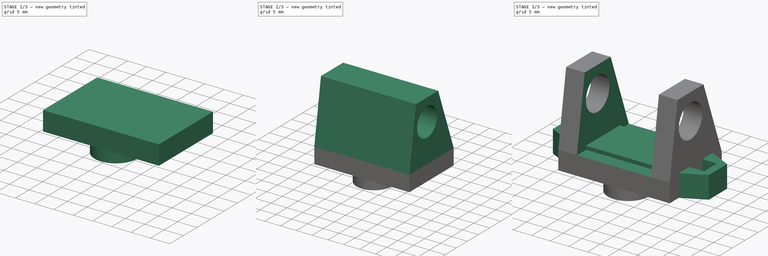
[diagram: build sequence overview — one tinted view per stage of 3, left to right]
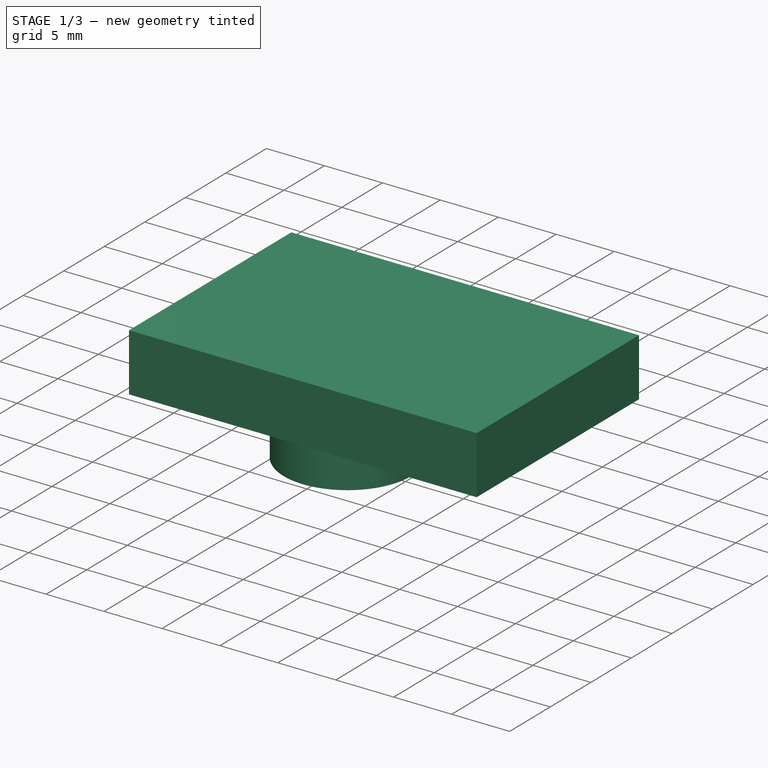
[diagram: stage 1 of 3 — iso view after this stage's code; geometry added in this stage tinted green]
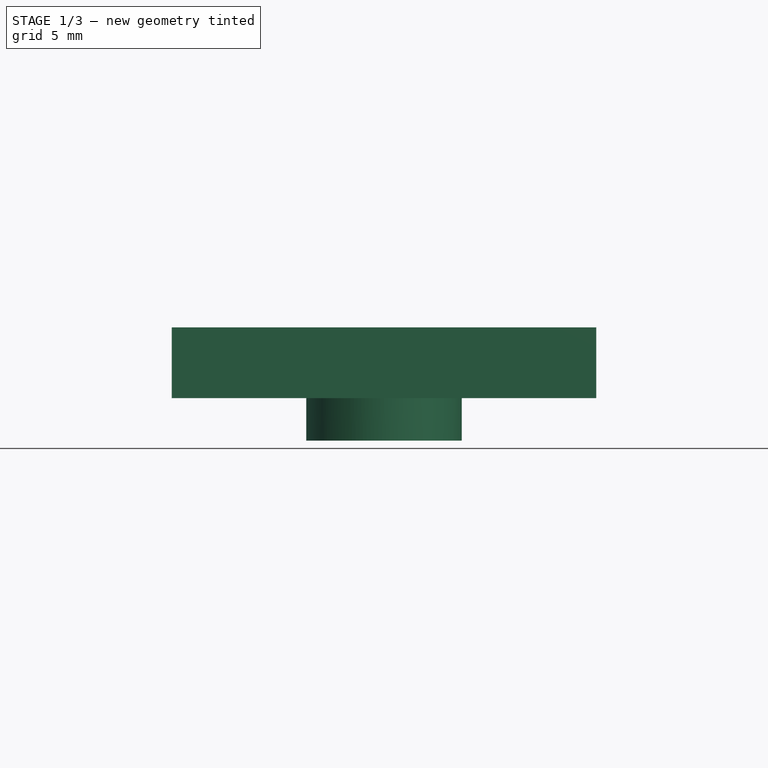
[diagram: stage 1 of 3 — front view after this stage's code; geometry added in this stage tinted green]
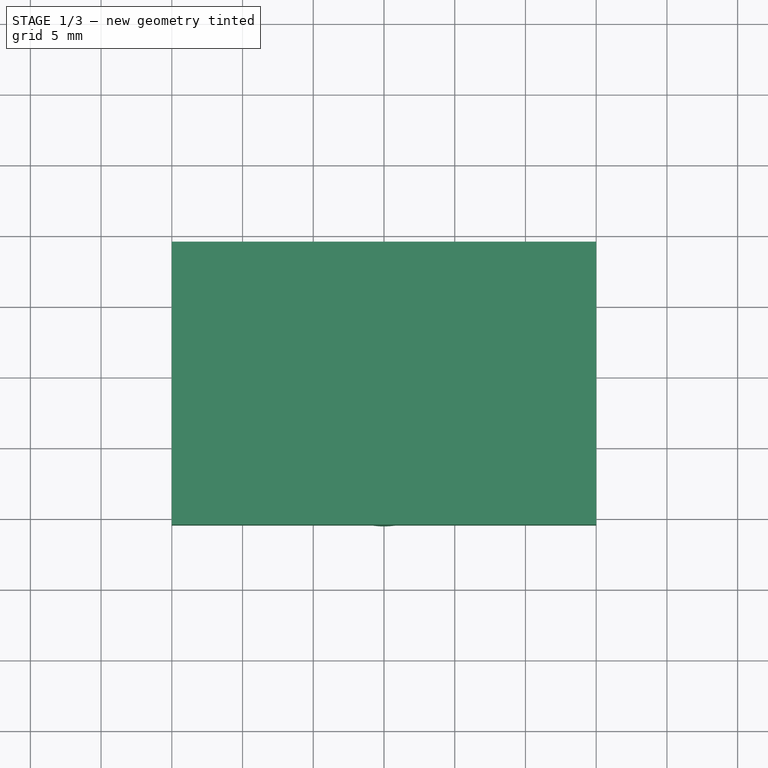
[diagram: stage 1 of 3 — top view after this stage's code; geometry added in this stage tinted green]
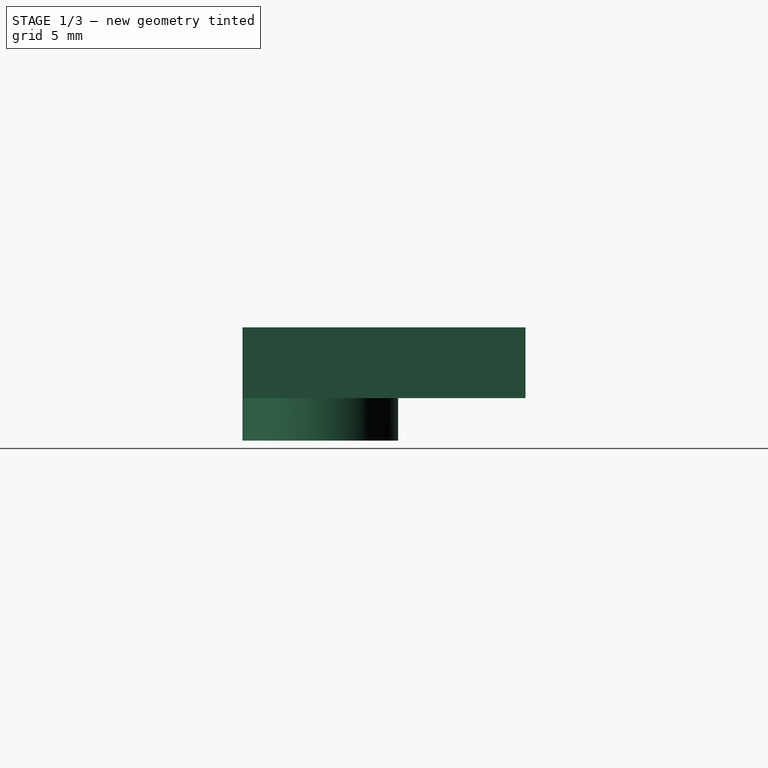
[diagram: stage 1 of 3 — right view after this stage's code; geometry added in this stage tinted green]
FCSTD DOCUMENT  (FreeCAD 0.19R)
Label: fpv_camera_support
License: All rights reserved
LicenseURL: http://en.wikipedia.org/wiki/All_rights_reserved
objects: Sketcher::SketchObject×5, PartDesign::Pad×4, PartDesign::CoordinateSystem×2, PartDesign::Pocket×1, PartDesign::Plane×1, PartDesign::Body×1
note: 19 computed .brp shape members not serialized (recipe doc carries the construction recipe); baked Part::Feature solids carry a one-line shape summary decoded from their .brp

FEATURE [Sketcher::SketchObject] Sketch
  FullyConstrained = true
  MapMode = 5
  Support = -> [XY_Plane]
  sketch-geometry (1):
    g0: Circle CenterX=0 CenterY=0 CenterZ=0 NormalX=0 NormalY=0 NormalZ=1 AngleXU=0 Radius=5.5
  constraints (2):
    c: Coincident(g0,g-1)
    c: Diameter(g0) = 11
FEATURE [PartDesign::Pad] Pad
  Direction = (1,1,1)
  Length = 3
  Length2 = 100
  Profile = -> Sketch
  Type = 0
FEATURE [Sketcher::SketchObject] Sketch001
  ExternalGeometry = -> [Pad]
  FullyConstrained = true
  MapMode = 5
  Placement = pos=(0,0,3) rot=(0,0,1;0rad)
  Support = -> [Pad]
  sketch-geometry (4):
    g0: LineSegment StartX=-15 StartY=14.5 StartZ=0 EndX=15 EndY=14.5 EndZ=0
    g1: LineSegment StartX=15 StartY=14.5 StartZ=0 EndX=15 EndY=-5.5 EndZ=0
    g2: LineSegment StartX=15 StartY=-5.5 StartZ=0 EndX=-15 EndY=-5.5 EndZ=0
    g3: LineSegment StartX=-15 StartY=-5.5 StartZ=0 EndX=-15 EndY=14.5 EndZ=0
  constraints (11):
    c: Coincident(g0,g1)
    c: Coincident(g1,g2)
    c: Coincident(g2,g3)
    c: Coincident(g3,g0)
    c: Horizontal(g0)
    c: Vertical(g1)
    c: Vertical(g3)
    c: DistanceX(g2,g2) = 30
    c: Symmetric(g1,g2,g-2)
    c: DistanceY(g1,g-1) = 5.5
    c: DistanceY(g1,g1) = 20
FEATURE [PartDesign::Pad] Pad001
  BaseFeature = -> Pad
  Direction = (1,1,1)
  Length = 5
  Length2 = 100
  Profile = -> Sketch001
  Type = 0
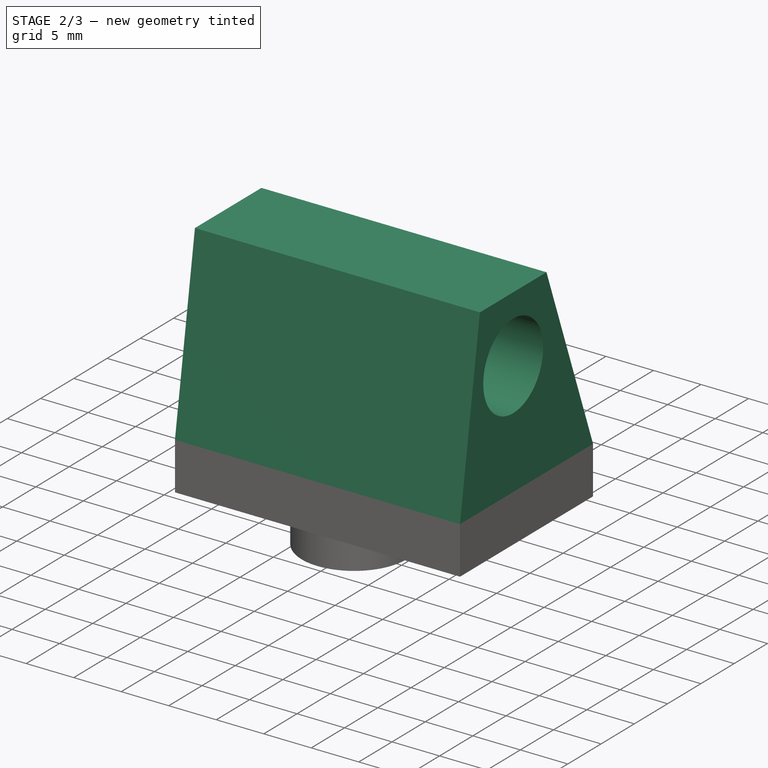
[diagram: stage 2 of 3 — iso view after this stage's code; geometry added in this stage tinted green]
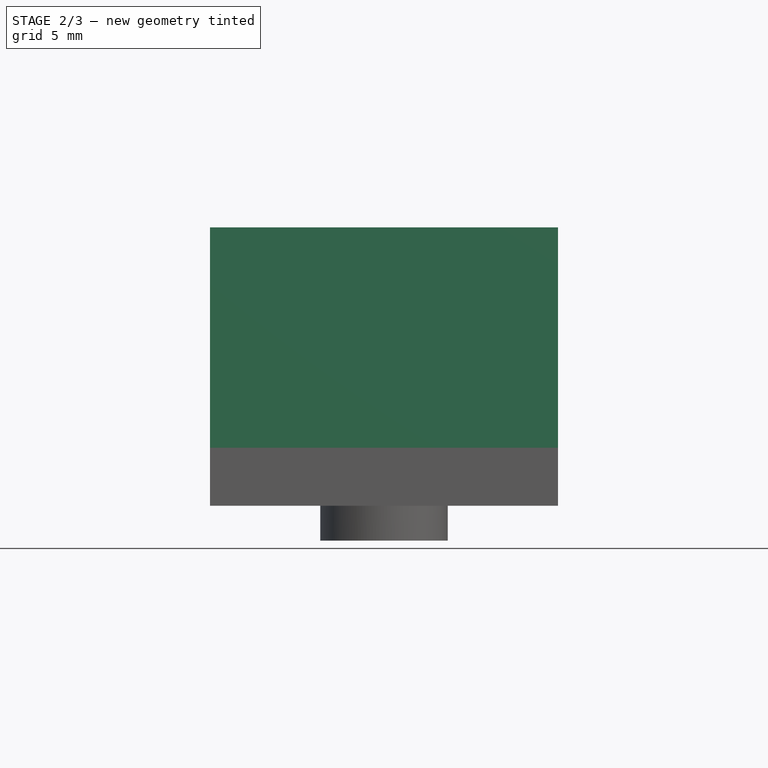
[diagram: stage 2 of 3 — front view after this stage's code; geometry added in this stage tinted green]
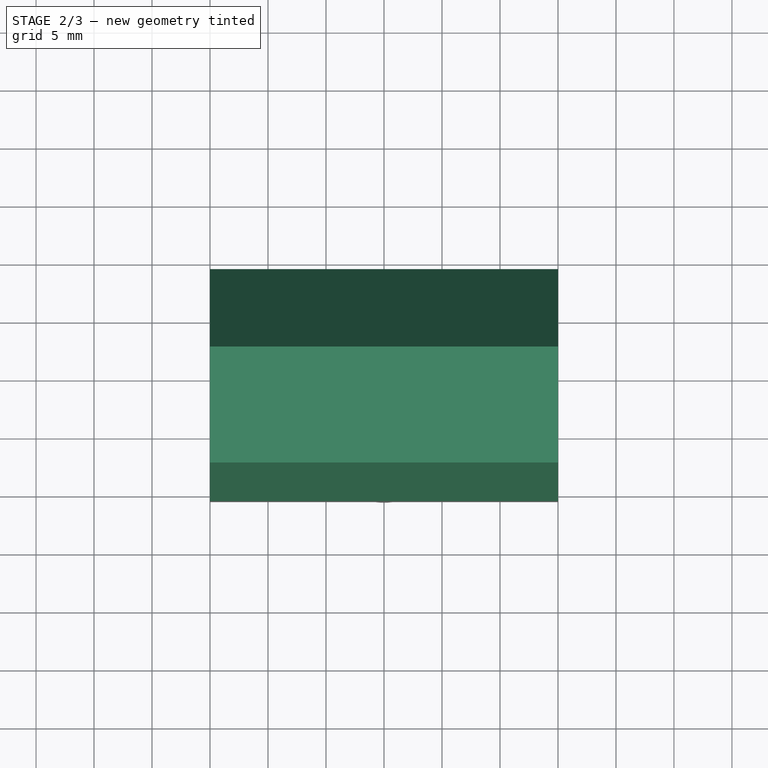
[diagram: stage 2 of 3 — top view after this stage's code; geometry added in this stage tinted green]
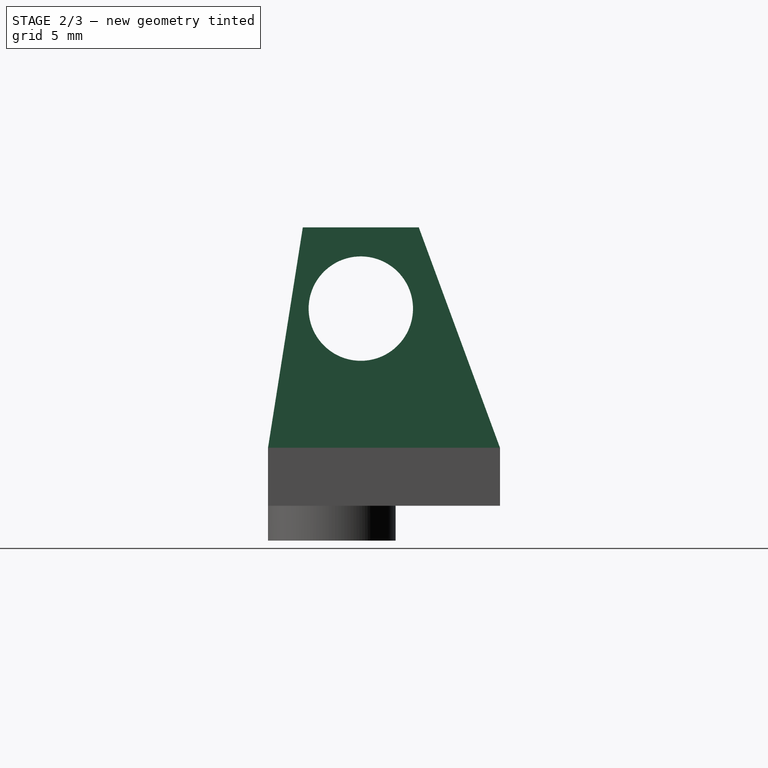
[diagram: stage 2 of 3 — right view after this stage's code; geometry added in this stage tinted green]
FEATURE [Sketcher::SketchObject] Sketch002
  ExternalGeometry = -> [Pad001]
  FullyConstrained = true
  MapMode = 5
  Placement = pos=(15,0,0) rot=(0.57735,0.57735,0.57735;2.0944rad)
  Support = -> [Pad001]
  sketch-geometry (7):
    g0: LineSegment StartX=-5.5 StartY=7 StartZ=0 EndX=14.5 EndY=7 EndZ=0
    g1: LineSegment StartX=14.5 StartY=8 StartZ=0 EndX=7.5 EndY=27 EndZ=0
    g2: LineSegment StartX=7.5 StartY=27 StartZ=0 EndX=-2.5 EndY=27 EndZ=0
    g3: LineSegment StartX=-2.5 StartY=27 StartZ=0 EndX=-5.5 EndY=8 EndZ=0
    g4: Circle CenterX=2.5 CenterY=20 CenterZ=0 NormalX=0 NormalY=0 NormalZ=1 AngleXU=0 Radius=4.5
    g5: LineSegment StartX=-5.5 StartY=8 StartZ=0 EndX=-5.5 EndY=7 EndZ=0
    g6: LineSegment StartX=14.5 StartY=7 StartZ=0 EndX=14.5 EndY=8 EndZ=0
  constraints (21):
    c: Coincident(g1,g2)
    c: Horizontal(g2)
    c: Coincident(g2,g3)
    c: DistanceY(g0,g2) = 20
    c: DistanceX(g0,g2) = 3
    c: DistanceX(g1,g0) = 7
    c: Diameter(g4) = 9
    c: DistanceY(g4,g1) = 7
    c: DistanceX(g2,g4) = 5
    c: Coincident(g5,g3)
    c: Coincident(g5,g0)
    c: Vertical(g5)
    c: Horizontal(g0)
    c: Coincident(g6,g0)
    c: Coincident(g6,g1)
    c: Vertical(g6)
    c: DistanceY(g6,g6) = 1
    c: DistanceY(g-1,g3) = 8
    c: Equal(g5,g6)
    c: DistanceX(g0,g-1) = 5.5
    c: DistanceX(g-1,g0) = 14.5
FEATURE [PartDesign::Pad] Pad002
  BaseFeature = -> Pad001
  Direction = (1,1,1)
  Length = 30
  Length2 = 100
  Profile = -> Sketch002
  Reversed = true
  Type = 0
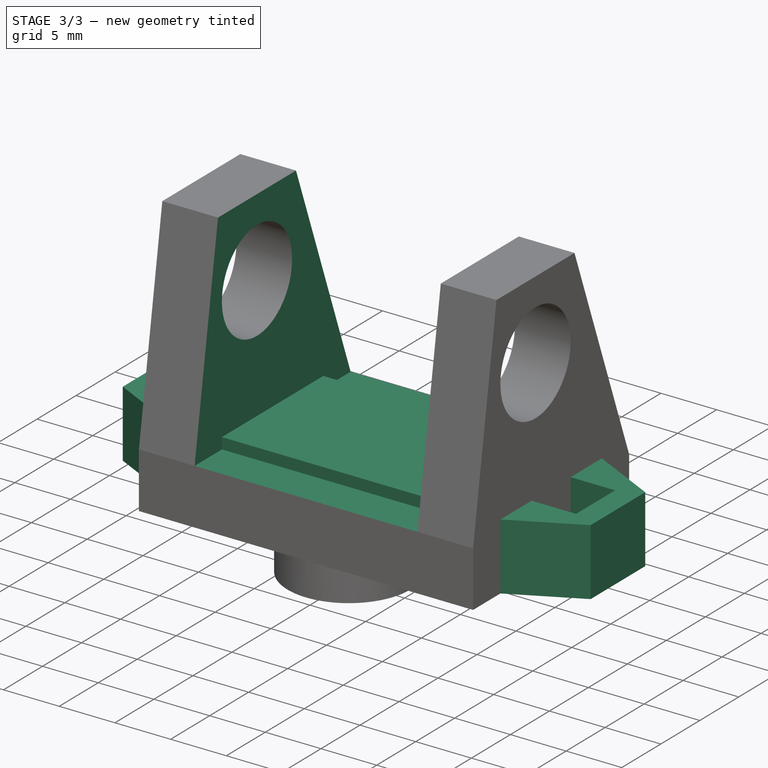
[diagram: stage 3 of 3 — iso view after this stage's code; geometry added in this stage tinted green]
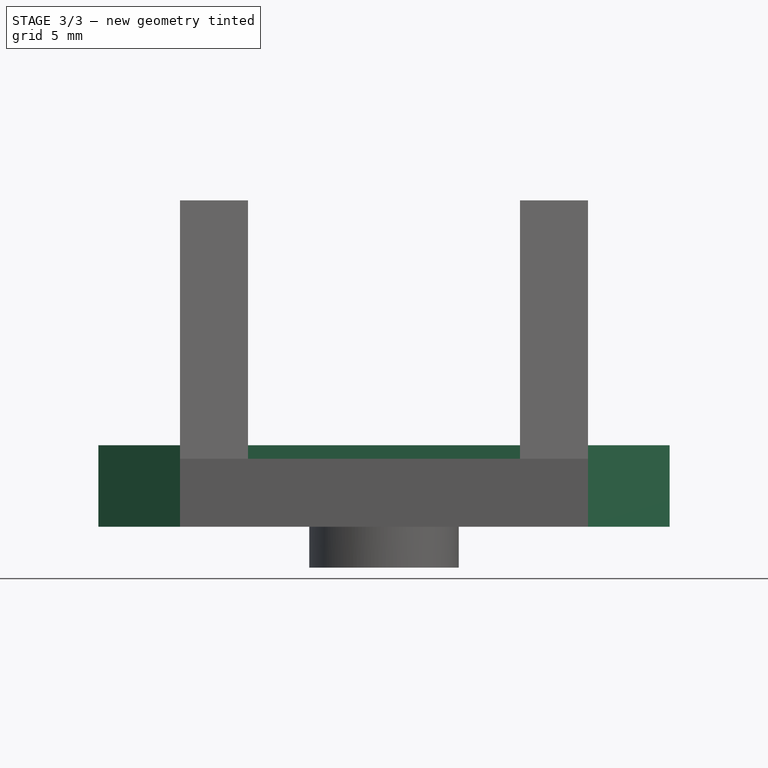
[diagram: stage 3 of 3 — front view after this stage's code; geometry added in this stage tinted green]
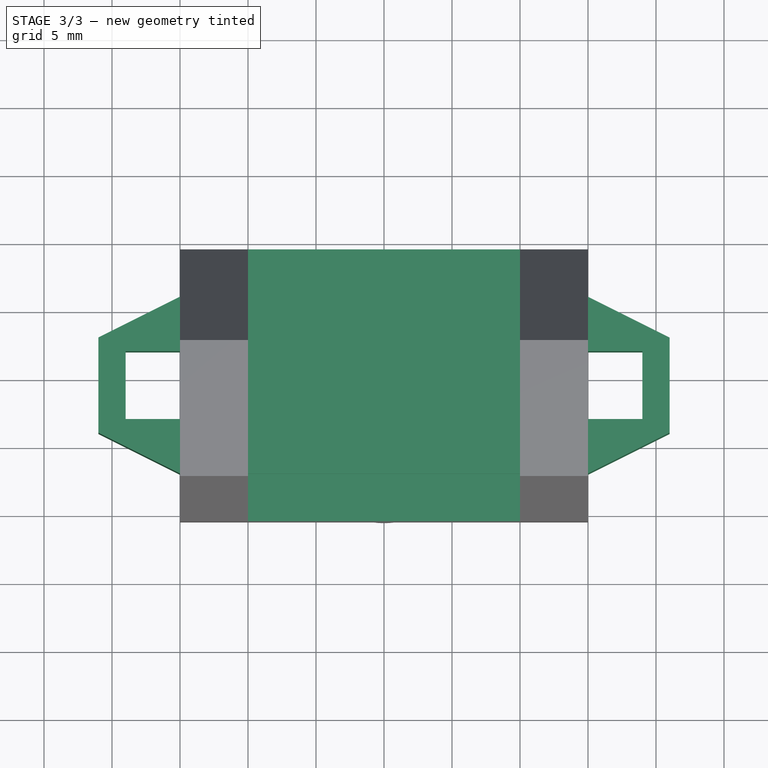
[diagram: stage 3 of 3 — top view after this stage's code; geometry added in this stage tinted green]
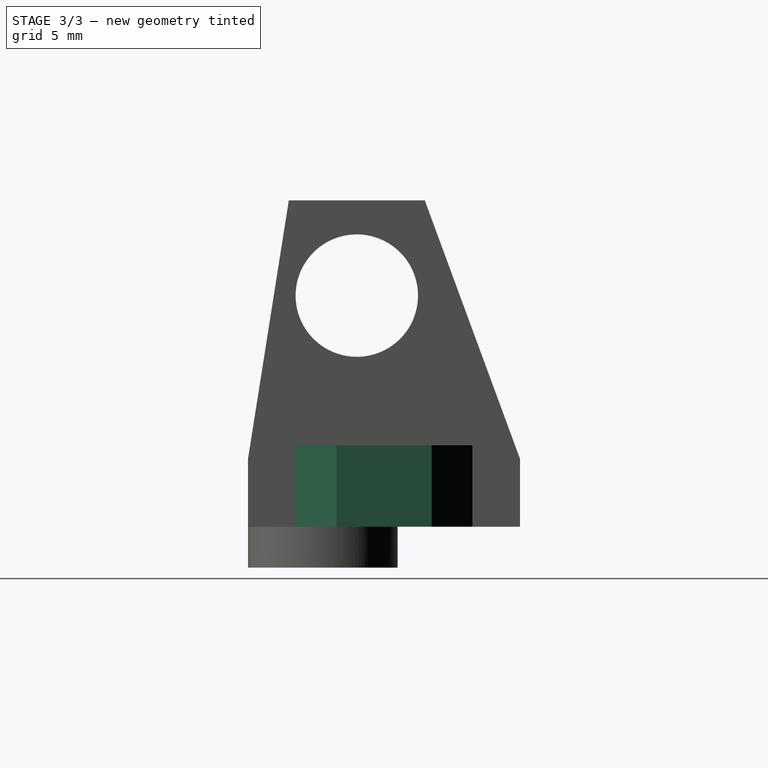
[diagram: stage 3 of 3 — right view after this stage's code; geometry added in this stage tinted green]
FEATURE [Sketcher::SketchObject] Sketch003
  ExternalGeometry = -> [Pad002]
  FullyConstrained = true
  MapMode = 5
  Placement = pos=(0,-5.5,0) rot=(1,0,0;1.5708rad)
  Support = -> [Pad002]
  sketch-geometry (4):
    g0: LineSegment StartX=-10 StartY=27 StartZ=0 EndX=10 EndY=27 EndZ=0
    g1: LineSegment StartX=10 StartY=27 StartZ=0 EndX=10 EndY=8 EndZ=0
    g2: LineSegment StartX=10 StartY=8 StartZ=0 EndX=-10 EndY=8 EndZ=0
    g3: LineSegment StartX=-10 StartY=8 StartZ=0 EndX=-10 EndY=27 EndZ=0
  constraints (12):
    c: Coincident(g0,g1)
    c: Coincident(g1,g2)
    c: Coincident(g2,g3)
    c: Coincident(g3,g0)
    c: Horizontal(g0)
    c: Horizontal(g2)
    c: Vertical(g1)
    c: Vertical(g3)
    c: DistanceX(g-4,g2) = 5
    c: DistanceX(g1,g-3) = 5
    c: DistanceY(g-3,g1) = 1
    c: PointOnObject(g0,g-5)
FEATURE [PartDesign::Pocket] Pocket
  BaseFeature = -> Pad002
  Length = 5
  Length2 = 100
  Profile = -> Sketch003
  Type = 1
FEATURE [PartDesign::CoordinateSystem] LCS_1
  AttacherType = Attacher::AttachEngine3D
  MapMode = 11
  Placement = pos=(0,0,0) rot=(0,0,1;1.5708rad)
  Support = -> [Pocket]
FEATURE [PartDesign::CoordinateSystem] LCS_2
  AttacherType = Attacher::AttachEngine3D
  MapMode = 11
  Placement = pos=(10,2.5,20) rot=(0.707107,0,0.707107;3.14159rad)
  Support = -> [Pocket]
FEATURE [PartDesign::Plane] DatumPlane
  Length = 60
  MapMode = 5
  Placement = pos=(0,0,3) rot=(1,0,0;3.14159rad)
  ResizeMode = 0
  Support = -> [Pocket]
  Width = 60
FEATURE [Sketcher::SketchObject] Sketch004
  ExternalGeometry = -> [Pocket]
  FullyConstrained = true
  MapMode = 5
  Placement = pos=(0,0,3) rot=(1,0,0;3.14159rad)
  Support = -> [DatumPlane]
  sketch-geometry (16):
    g0: LineSegment StartX=-15 StartY=2 StartZ=0 EndX=-21 EndY=-1 EndZ=0
    g1: LineSegment StartX=-21 StartY=-1 StartZ=0 EndX=-21 EndY=-8 EndZ=0
    g2: LineSegment StartX=-21 StartY=-8 StartZ=0 EndX=-15 EndY=-11 EndZ=0
    g3: LineSegment StartX=-15 StartY=-11 StartZ=0 EndX=15 EndY=-11 EndZ=0
    g4: LineSegment StartX=15 StartY=-11 StartZ=0 EndX=21 EndY=-8 EndZ=0
    g5: LineSegment StartX=21 StartY=-8 StartZ=0 EndX=21 EndY=-1 EndZ=0
    g6: LineSegment StartX=21 StartY=-1 StartZ=0 EndX=15 EndY=2 EndZ=0
    g7: LineSegment StartX=15 StartY=2 StartZ=0 EndX=-15 EndY=2 EndZ=0
    g8: LineSegment StartX=-19 StartY=-2 StartZ=0 EndX=-15 EndY=-2 EndZ=0
    g9: LineSegment StartX=-15 StartY=-2 StartZ=0 EndX=-15 EndY=-7 EndZ=0
    g10: LineSegment StartX=-15 StartY=-7 StartZ=0 EndX=-19 EndY=-7 EndZ=0
    g11: LineSegment StartX=-19 StartY=-7 StartZ=0 EndX=-19 EndY=-2 EndZ=0
    g12: LineSegment StartX=15 StartY=-2 StartZ=0 EndX=19 EndY=-2 EndZ=0
    g13: LineSegment StartX=19 StartY=-2 StartZ=0 EndX=19 EndY=-7 EndZ=0
    g14: LineSegment StartX=19 StartY=-7 StartZ=0 EndX=15 EndY=-7 EndZ=0
    g15: LineSegment StartX=15 StartY=-7 StartZ=0 EndX=15 EndY=-2 EndZ=0
  constraints (46):
    c: PointOnObject(g0,g-3)
    c: Coincident(g0,g1)
    c: Vertical(g1)
    c: Coincident(g1,g2)
    c: PointOnObject(g2,g-3)
    c: Coincident(g2,g3)
    c: PointOnObject(g3,g-4)
    c: Horizontal(g3)
    c: Coincident(g3,g4)
    c: Coincident(g4,g5)
    c: Vertical(g5)
    c: Coincident(g5,g6)
    c: PointOnObject(g6,g-4)
    c: Coincident(g6,g7)
    c: Coincident(g7,g0)
    c: Horizontal(g7)
    c: Symmetric(g0,g5,g-2)
    c: DistanceY(g6,g6) = 3
    c: DistanceY(g4,g4) = 3
    c: Equal(g5,g1)
    c: DistanceY(g5,g5) = 7
    c: DistanceX(g6,g6) = 6
    c: DistanceY(g6,g-4) = 3.5
    c: Coincident(g8,g9)
    c: Coincident(g9,g10)
    c: Coincident(g10,g11)
    c: Coincident(g11,g8)
    c: Horizontal(g8)
    c: Horizontal(g10)
    c: Vertical(g9)
    c: Vertical(g11)
    c: Coincident(g12,g13)
    c: Coincident(g13,g14)
    c: Coincident(g14,g15)
    c: Coincident(g15,g12)
    c: Horizontal(g12)
    c: Horizontal(g14)
    c: Vertical(g13)
    c: Vertical(g15)
    c: Equal(g13,g9)
    c: Equal(g12,g8)
    c: PointOnObject(g8,g-3)
    c: Symmetric(g8,g12,g-2)
    c: DistanceY(g12,g6) = 4
    c: DistanceY(g3,g14) = 4
    c: DistanceX(g14,g14) = 4
FEATURE [PartDesign::Pad] Pad003
  BaseFeature = -> Pocket
  Direction = (1,1,1)
  Length = 6
  Length2 = 100
  Profile = -> Sketch004
  Reversed = true
  Type = 0
FEATURE [PartDesign::Body] Body
  Group = -> [Sketch,Pad,Sketch001,Pad001,Sketch002,Pad002,Sketch003,Pocket,LCS_1,LCS_2,DatumPlane,Sketch004,Pad003]
  Origin = -> Origin
  Tip = -> Pad003
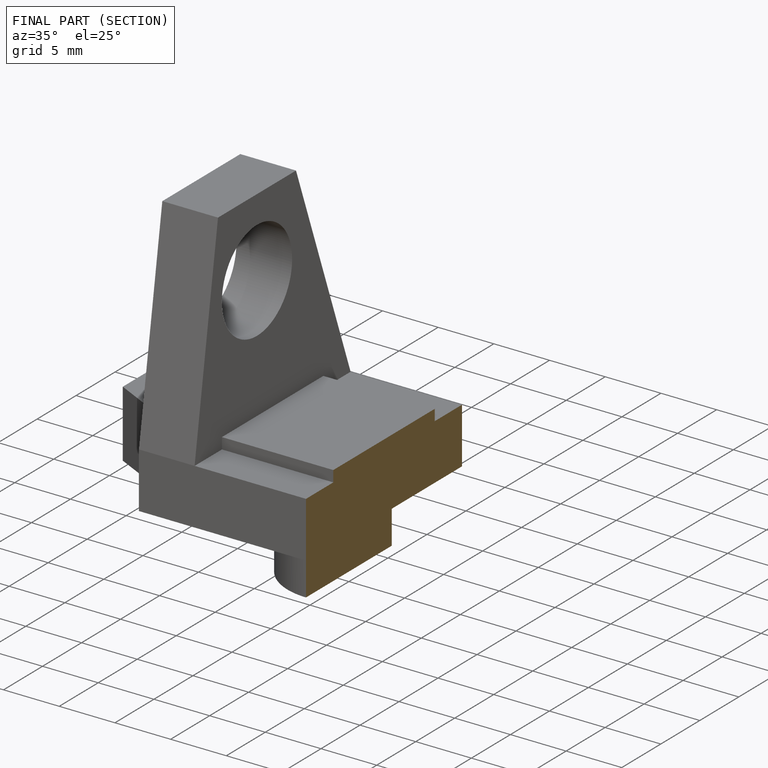
[diagram: finished part — half-section view (interior)]
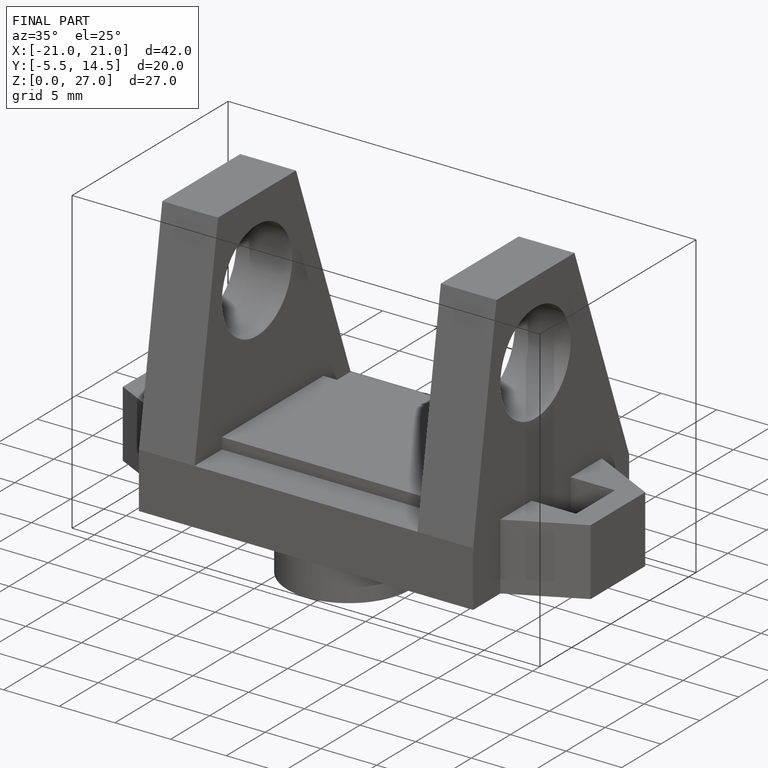
[diagram: finished part — iso view with bounding-box wireframe]
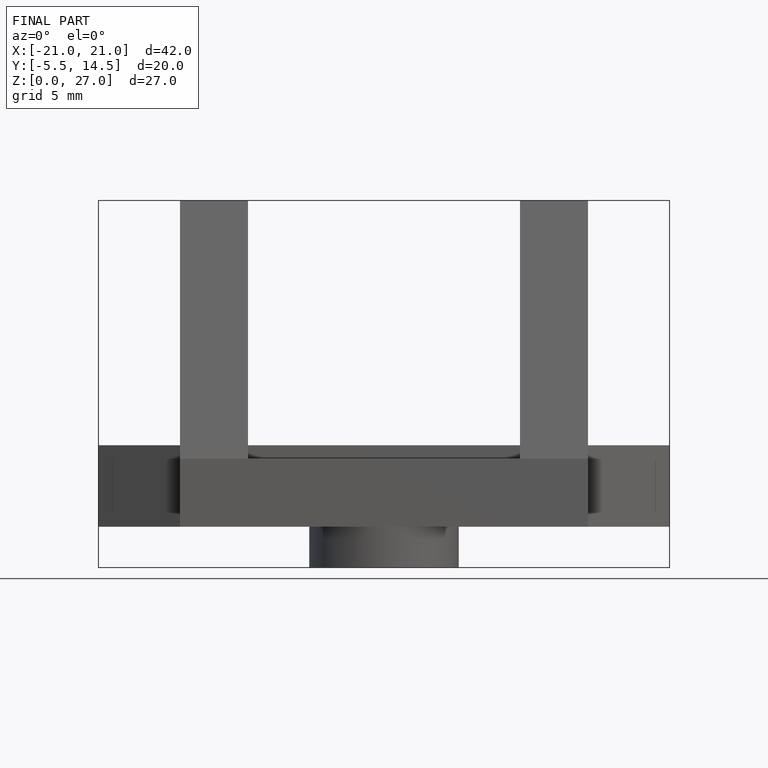
[diagram: finished part — front view with bounding-box wireframe]
